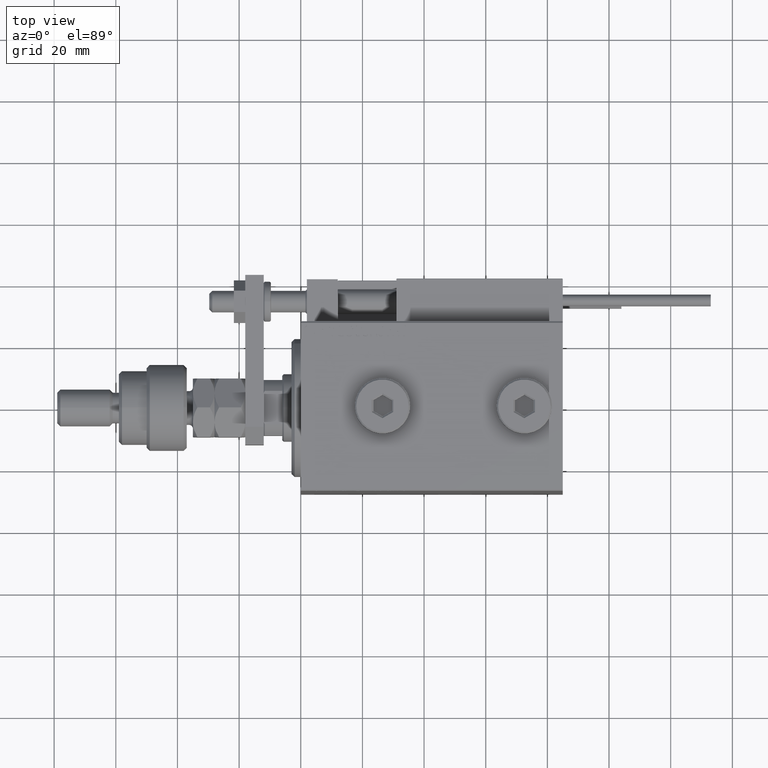
[diagram: clean part render]
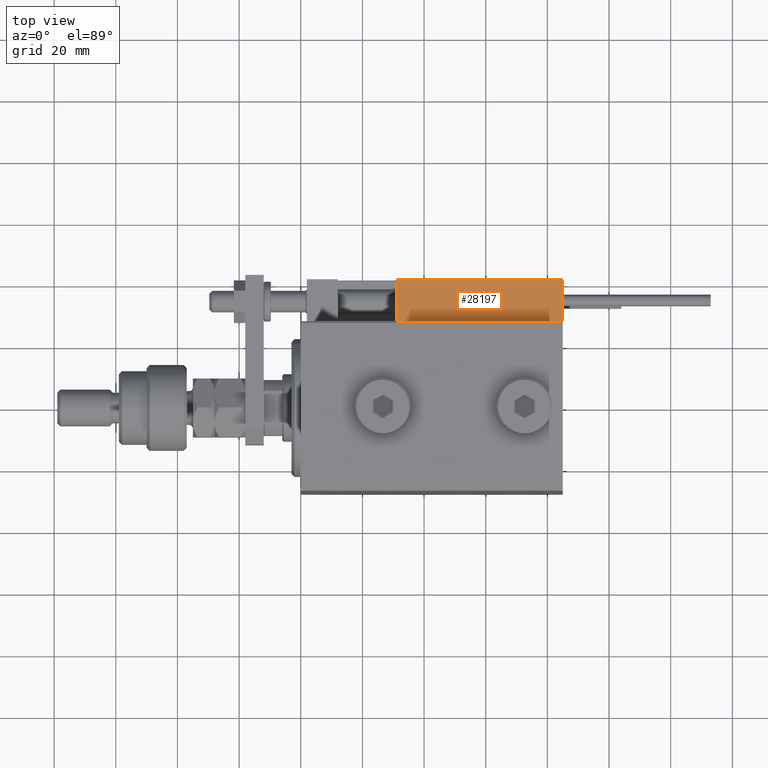
[diagram: same view with one face highlighted and labeled with its STEP entity id]
A machine part, top view. The second image highlights one B-rep face of the part: STEP entity #28197.
In plain terms, the highlighted planar face has unit normal (-0, -0, -1).
Its self-contained STEP definition (entity closure, byte-faithful):
#626 = EDGE_LOOP ( 'NONE', ( #39685, #28567, #41889, #12472 ) ) ;
#770 = CARTESIAN_POINT ( 'NONE',  ( -26.99999999999993605, 20.00000000000002132, 0.000000000000000000 ) ) ;
#1787 = EDGE_CURVE ( 'NONE', #52326, #20668, #53480, .T. ) ;
#2994 = VECTOR ( 'NONE', #29000, 1000.000000000000000 ) ;
#3247 = LINE ( 'NONE', #16958, #49383 ) ;
#3964 = EDGE_CURVE ( 'NONE', #20668, #19363, #13714, .T. ) ;
#6757 = CARTESIAN_POINT ( 'NONE',  ( 27.00000000000006395, 20.00000000000001776, 13.70000000000000107 ) ) ;
#7588 = DIRECTION ( 'NONE',  ( 1.000000000000000000, -6.424901762877063495E-17, 0.000000000000000000 ) ) ;
#8436 = DIRECTION ( 'NONE',  ( -1.000000000000000000, 6.424901762877062263E-17, 0.000000000000000000 ) ) ;
#12472 = ORIENTED_EDGE ( 'NONE', *, *, #38518, .T. ) ;
#13714 = LINE ( 'NONE', #34866, #30542 ) ;
#14663 = AXIS2_PLACEMENT_3D ( 'NONE', #46065, #32848, #7588 ) ;
#15272 = DIRECTION ( 'NONE',  ( 1.000000000000000000, -6.424901762877063495E-17, -0.000000000000000000 ) ) ;
#16958 = CARTESIAN_POINT ( 'NONE',  ( 27.00000000000006395, 20.00000000000001776, 0.000000000000000000 ) ) ;
#19363 = VERTEX_POINT ( 'NONE', #46624 ) ;
#20668 = VERTEX_POINT ( 'NONE', #22596 ) ;
#22596 = CARTESIAN_POINT ( 'NONE',  ( 27.00000000000006395, 20.00000000000001776, 13.70000000000000107 ) ) ;
#26336 = DIRECTION ( 'NONE',  ( -0.000000000000000000, -0.000000000000000000, -1.000000000000000000 ) ) ;
#28197 = ADVANCED_FACE ( 'NONE', ( #37789 ), #37259, .F. ) ;
#28198 = CARTESIAN_POINT ( 'NONE',  ( -26.99999999999993605, 20.00000000000002132, 14.00000000000000000 ) ) ;
#28567 = ORIENTED_EDGE ( 'NONE', *, *, #1787, .T. ) ;
#29000 = DIRECTION ( 'NONE',  ( -0.000000000000000000, -0.000000000000000000, -1.000000000000000000 ) ) ;
#30542 = VECTOR ( 'NONE', #26336, 1000.000000000000000 ) ;
#32848 = DIRECTION ( 'NONE',  ( -6.424901762877063495E-17, -1.000000000000000000, 0.000000000000000000 ) ) ;
#34866 = CARTESIAN_POINT ( 'NONE',  ( 27.00000000000006395, 20.00000000000001776, 14.00000000000000000 ) ) ;
#37259 = PLANE ( 'NONE',  #14663 ) ;
#37789 = FACE_OUTER_BOUND ( 'NONE', #626, .T. ) ;
#38518 = EDGE_CURVE ( 'NONE', #19363, #52109, #3247, .T. ) ;
#39685 = ORIENTED_EDGE ( 'NONE', *, *, #45142, .F. ) ;
#41889 = ORIENTED_EDGE ( 'NONE', *, *, #3964, .T. ) ;
#43922 = CARTESIAN_POINT ( 'NONE',  ( -26.99999999999993605, 20.00000000000002132, 13.70000000000000107 ) ) ;
#45142 = EDGE_CURVE ( 'NONE', #52326, #52109, #52998, .T. ) ;
#46065 = CARTESIAN_POINT ( 'NONE',  ( 27.00000000000006395, 20.00000000000001776, 14.00000000000000000 ) ) ;
#46624 = CARTESIAN_POINT ( 'NONE',  ( 27.00000000000006395, 20.00000000000001776, 0.000000000000000000 ) ) ;
#49383 = VECTOR ( 'NONE', #8436, 1000.000000000000000 ) ;
#50689 = VECTOR ( 'NONE', #15272, 1000.000000000000000 ) ;
#52109 = VERTEX_POINT ( 'NONE', #770 ) ;
#52326 = VERTEX_POINT ( 'NONE', #43922 ) ;
#52998 = LINE ( 'NONE', #28198, #2994 ) ;
#53480 = LINE ( 'NONE', #6757, #50689 ) ;